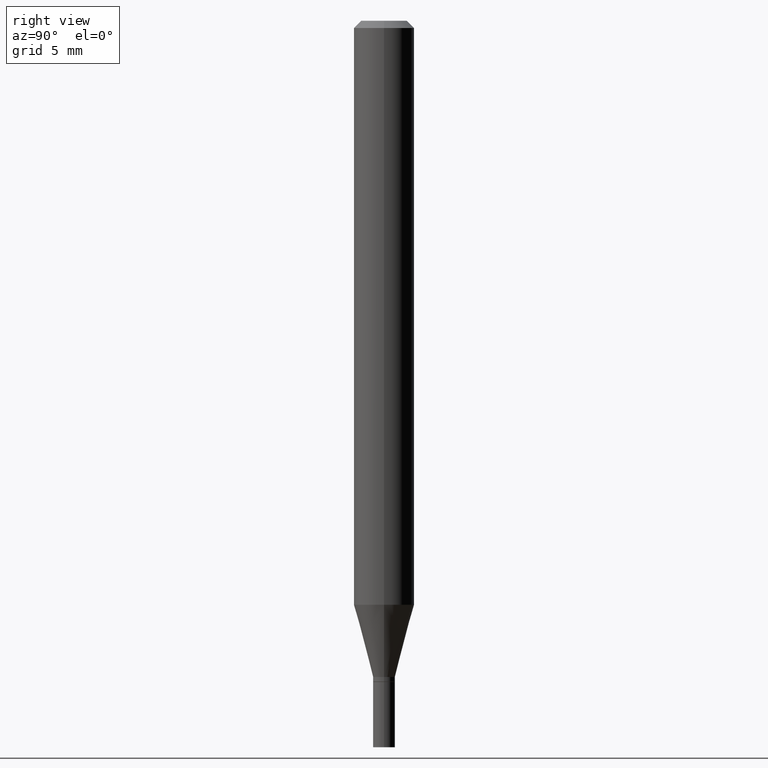
[diagram: clean part render]
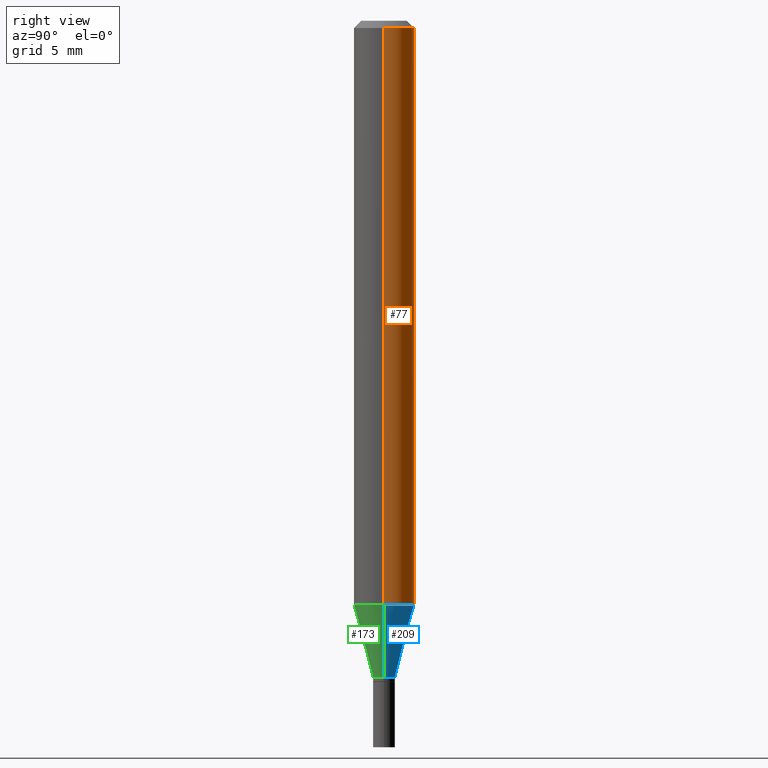
[diagram: same view with three faces highlighted in distinct colors, each labeled with its STEP entity id]
A machine part, right view with three faces highlighted in distinct colors.
Their STEP definitions:

[orange] entity #77 — the highlighted cylindrical surface (edge-blend (fillet) strip) has radius 1.5875 mm, axis along (-0, 0, 1).
#2 = LINE ( 'NONE', #140, #127 ) ;
#19 = CIRCLE ( 'NONE', #132, 0.06250000000000000000 ) ;
#32 = DIRECTION ( 'NONE',  ( -2.445468806185136597E-29, 3.491481338843145583E-15, 1.000000000000000000 ) ) ;
#34 = DIRECTION ( 'NONE',  ( 1.000000000000000000, -6.982962677686266711E-15, 0.000000000000000000 ) ) ;
#41 = CIRCLE ( 'NONE', #57, 0.06250000000000000000 ) ;
#49 = EDGE_CURVE ( 'NONE', #62, #54, #41, .T. ) ;
#54 = VERTEX_POINT ( 'NONE', #363 ) ;
#57 = AXIS2_PLACEMENT_3D ( 'NONE', #371, #403, #431 ) ;
#62 = VERTEX_POINT ( 'NONE', #394 ) ;
#74 = ORIENTED_EDGE ( 'NONE', *, *, #49, .T. ) ;
#77 = ADVANCED_FACE ( 'NONE', ( #152 ), #339, .T. ) ;
#89 = CARTESIAN_POINT ( 'NONE',  ( 0.000000000000000000, 0.000000000000000000, 0.000000000000000000 ) ) ;
#90 = EDGE_LOOP ( 'NONE', ( #74, #343, #234, #126 ) ) ;
#125 = VERTEX_POINT ( 'NONE', #219 ) ;
#126 = ORIENTED_EDGE ( 'NONE', *, *, #328, .F. ) ;
#127 = VECTOR ( 'NONE', #353, 39.37007874015748143 ) ;
#132 = AXIS2_PLACEMENT_3D ( 'NONE', #235, #32, #34 ) ;
#140 = CARTESIAN_POINT ( 'NONE',  ( 0.06250000000000000000, -4.364351673553916694E-16, 3.047610484872459871E-30 ) ) ;
#152 = FACE_OUTER_BOUND ( 'NONE', #90, .T. ) ;
#183 = DIRECTION ( 'NONE',  ( 1.000000000000000000, -6.982962677686266711E-15, 4.876176775795935793E-29 ) ) ;
#208 = DIRECTION ( 'NONE',  ( -2.445468806185136877E-29, 3.491481338843145188E-15, 1.000000000000000000 ) ) ;
#219 = CARTESIAN_POINT ( 'NONE',  ( 0.06250000000000000000, -4.888073874380388472E-16, -0.01499999999999999944 ) ) ;
#234 = ORIENTED_EDGE ( 'NONE', *, *, #244, .F. ) ;
#235 = CARTESIAN_POINT ( 'NONE',  ( 3.668203209277705088E-31, -5.237222008264718399E-17, -0.01499999999999999944 ) ) ;
#239 = CARTESIAN_POINT ( 'NONE',  ( -0.06250000000000000000, 4.440892098500626162E-16, -3.074334431409316114E-30 ) ) ;
#243 = EDGE_CURVE ( 'NONE', #54, #406, #420, .T. ) ;
#244 = EDGE_CURVE ( 'NONE', #125, #406, #19, .T. ) ;
#258 = DIRECTION ( 'NONE',  ( -2.445468806185136597E-29, 3.491481338843145583E-15, 1.000000000000000000 ) ) ;
#324 = CARTESIAN_POINT ( 'NONE',  ( -0.06250000000000000000, -1.686967792252667731E-15, -0.01499999999999999944 ) ) ;
#328 = EDGE_CURVE ( 'NONE', #62, #125, #2, .T. ) ;
#339 = CYLINDRICAL_SURFACE ( 'NONE', #421, 0.06250000000000000000 ) ;
#343 = ORIENTED_EDGE ( 'NONE', *, *, #243, .T. ) ;
#353 = DIRECTION ( 'NONE',  ( -2.445468806185136877E-29, 3.491481338843145188E-15, 1.000000000000000000 ) ) ;
#363 = CARTESIAN_POINT ( 'NONE',  ( -0.06250000000000001388, -3.765652574272750998E-15, -1.205717967697245152 ) ) ;
#371 = CARTESIAN_POINT ( 'NONE',  ( 2.948545679060551070E-29, -4.209741784122813615E-15, -1.205717967697245152 ) ) ;
#394 = CARTESIAN_POINT ( 'NONE',  ( 0.06250000000000001388, -4.646176951478205284E-15, -1.205717967697245152 ) ) ;
#395 = VECTOR ( 'NONE', #208, 39.37007874015748143 ) ;
#403 = DIRECTION ( 'NONE',  ( -2.445468806185136597E-29, 3.491481338843145583E-15, 1.000000000000000000 ) ) ;
#406 = VERTEX_POINT ( 'NONE', #324 ) ;
#420 = LINE ( 'NONE', #239, #395 ) ;
#421 = AXIS2_PLACEMENT_3D ( 'NONE', #89, #258, #183 ) ;
#431 = DIRECTION ( 'NONE',  ( 1.000000000000000000, -6.982962677686270655E-15, 0.000000000000000000 ) ) ;

[blue] entity #209 — the highlighted conical surface has half-angle 15 deg.
#41 = CIRCLE ( 'NONE', #57, 0.06250000000000000000 ) ;
#46 = DIRECTION ( 'NONE',  ( 1.000000000000000000, -6.982962677686249356E-15, 0.000000000000000000 ) ) ;
#49 = EDGE_CURVE ( 'NONE', #62, #54, #41, .T. ) ;
#54 = VERTEX_POINT ( 'NONE', #363 ) ;
#57 = AXIS2_PLACEMENT_3D ( 'NONE', #371, #403, #431 ) ;
#62 = VERTEX_POINT ( 'NONE', #394 ) ;
#63 = LINE ( 'NONE', #457, #280 ) ;
#78 = CARTESIAN_POINT ( 'NONE',  ( 0.02249999999999991937, -4.888073874380403263E-15, -1.355000000000000204 ) ) ;
#83 = CARTESIAN_POINT ( 'NONE',  ( 3.313610232380860851E-29, -4.730957214132463209E-15, -1.355000000000000204 ) ) ;
#110 = VECTOR ( 'NONE', #299, 39.37007874015747433 ) ;
#153 = ORIENTED_EDGE ( 'NONE', *, *, #459, .F. ) ;
#164 = ORIENTED_EDGE ( 'NONE', *, *, #49, .F. ) ;
#177 = EDGE_LOOP ( 'NONE', ( #397, #230, #164, #153 ) ) ;
#190 = FACE_OUTER_BOUND ( 'NONE', #177, .T. ) ;
#200 = DIRECTION ( 'NONE',  ( -0.2588190451025213501, 5.211531920934551042E-15, 0.9659258262890682012 ) ) ;
#209 = ADVANCED_FACE ( 'NONE', ( #190 ), #435, .T. ) ;
#212 = CIRCLE ( 'NONE', #356, 0.02249999999999991937 ) ;
#230 = ORIENTED_EDGE ( 'NONE', *, *, #262, .T. ) ;
#231 = AXIS2_PLACEMENT_3D ( 'NONE', #83, #365, #46 ) ;
#259 = CARTESIAN_POINT ( 'NONE',  ( 0.02249999999999991937, -4.888073874380403263E-15, -1.355000000000000204 ) ) ;
#262 = EDGE_CURVE ( 'NONE', #369, #54, #63, .T. ) ;
#280 = VECTOR ( 'NONE', #200, 39.37007874015747433 ) ;
#285 = DIRECTION ( 'NONE',  ( -2.445468806185136597E-29, 3.491481338843145583E-15, 1.000000000000000000 ) ) ;
#288 = CARTESIAN_POINT ( 'NONE',  ( -0.02249999999999991937, -4.168368836429595565E-15, -1.355000000000000204 ) ) ;
#296 = VERTEX_POINT ( 'NONE', #78 ) ;
#299 = DIRECTION ( 'NONE',  ( 0.2588190451025213501, 1.565188264969621968E-15, 0.9659258262890682012 ) ) ;
#330 = DIRECTION ( 'NONE',  ( 1.000000000000000000, -6.982962677686249356E-15, 0.000000000000000000 ) ) ;
#356 = AXIS2_PLACEMENT_3D ( 'NONE', #430, #285, #330 ) ;
#363 = CARTESIAN_POINT ( 'NONE',  ( -0.06250000000000001388, -3.765652574272750998E-15, -1.205717967697245152 ) ) ;
#365 = DIRECTION ( 'NONE',  ( -2.445468806185136597E-29, 3.491481338843145583E-15, 1.000000000000000000 ) ) ;
#369 = VERTEX_POINT ( 'NONE', #288 ) ;
#371 = CARTESIAN_POINT ( 'NONE',  ( 2.948545679060551070E-29, -4.209741784122813615E-15, -1.205717967697245152 ) ) ;
#394 = CARTESIAN_POINT ( 'NONE',  ( 0.06250000000000001388, -4.646176951478205284E-15, -1.205717967697245152 ) ) ;
#397 = ORIENTED_EDGE ( 'NONE', *, *, #424, .T. ) ;
#403 = DIRECTION ( 'NONE',  ( -2.445468806185136597E-29, 3.491481338843145583E-15, 1.000000000000000000 ) ) ;
#415 = LINE ( 'NONE', #259, #110 ) ;
#424 = EDGE_CURVE ( 'NONE', #296, #369, #212, .T. ) ;
#430 = CARTESIAN_POINT ( 'NONE',  ( 3.313610232380860851E-29, -4.730957214132463209E-15, -1.355000000000000204 ) ) ;
#431 = DIRECTION ( 'NONE',  ( 1.000000000000000000, -6.982962677686270655E-15, 0.000000000000000000 ) ) ;
#435 = CONICAL_SURFACE ( 'NONE', #231, 0.02249999999999991937, 0.2617993877991500740 ) ;
#457 = CARTESIAN_POINT ( 'NONE',  ( -0.02249999999999991937, -4.571085098586440920E-15, -1.355000000000000204 ) ) ;
#459 = EDGE_CURVE ( 'NONE', #296, #62, #415, .T. ) ;

[green] entity #173 — the highlighted conical surface has half-angle 15 deg.
#48 = FACE_OUTER_BOUND ( 'NONE', #223, .T. ) ;
#54 = VERTEX_POINT ( 'NONE', #363 ) ;
#59 = CIRCLE ( 'NONE', #390, 0.06250000000000000000 ) ;
#62 = VERTEX_POINT ( 'NONE', #394 ) ;
#63 = LINE ( 'NONE', #457, #280 ) ;
#78 = CARTESIAN_POINT ( 'NONE',  ( 0.02249999999999991937, -4.888073874380403263E-15, -1.355000000000000204 ) ) ;
#79 = AXIS2_PLACEMENT_3D ( 'NONE', #408, #294, #373 ) ;
#110 = VECTOR ( 'NONE', #299, 39.37007874015747433 ) ;
#115 = DIRECTION ( 'NONE',  ( 1.000000000000000000, -6.982962677686249356E-15, 0.000000000000000000 ) ) ;
#144 = DIRECTION ( 'NONE',  ( -2.445468806185136597E-29, 3.491481338843145583E-15, 1.000000000000000000 ) ) ;
#173 = ADVANCED_FACE ( 'NONE', ( #48 ), #279, .T. ) ;
#174 = CIRCLE ( 'NONE', #326, 0.02249999999999991937 ) ;
#185 = CARTESIAN_POINT ( 'NONE',  ( 3.313610232380860851E-29, -4.730957214132463209E-15, -1.355000000000000204 ) ) ;
#199 = ORIENTED_EDGE ( 'NONE', *, *, #262, .F. ) ;
#200 = DIRECTION ( 'NONE',  ( -0.2588190451025213501, 5.211531920934551042E-15, 0.9659258262890682012 ) ) ;
#210 = EDGE_CURVE ( 'NONE', #369, #296, #174, .T. ) ;
#223 = EDGE_LOOP ( 'NONE', ( #199, #336, #264, #465 ) ) ;
#259 = CARTESIAN_POINT ( 'NONE',  ( 0.02249999999999991937, -4.888073874380403263E-15, -1.355000000000000204 ) ) ;
#262 = EDGE_CURVE ( 'NONE', #369, #54, #63, .T. ) ;
#264 = ORIENTED_EDGE ( 'NONE', *, *, #459, .T. ) ;
#279 = CONICAL_SURFACE ( 'NONE', #79, 0.02249999999999991937, 0.2617993877991500740 ) ;
#280 = VECTOR ( 'NONE', #200, 39.37007874015747433 ) ;
#288 = CARTESIAN_POINT ( 'NONE',  ( -0.02249999999999991937, -4.168368836429595565E-15, -1.355000000000000204 ) ) ;
#294 = DIRECTION ( 'NONE',  ( -2.445468806185136597E-29, 3.491481338843145583E-15, 1.000000000000000000 ) ) ;
#296 = VERTEX_POINT ( 'NONE', #78 ) ;
#299 = DIRECTION ( 'NONE',  ( 0.2588190451025213501, 1.565188264969621968E-15, 0.9659258262890682012 ) ) ;
#326 = AXIS2_PLACEMENT_3D ( 'NONE', #185, #440, #115 ) ;
#336 = ORIENTED_EDGE ( 'NONE', *, *, #210, .T. ) ;
#342 = EDGE_CURVE ( 'NONE', #54, #62, #59, .T. ) ;
#357 = DIRECTION ( 'NONE',  ( 1.000000000000000000, -6.982962677686270655E-15, 0.000000000000000000 ) ) ;
#362 = CARTESIAN_POINT ( 'NONE',  ( 2.948545679060551070E-29, -4.209741784122813615E-15, -1.205717967697245152 ) ) ;
#363 = CARTESIAN_POINT ( 'NONE',  ( -0.06250000000000001388, -3.765652574272750998E-15, -1.205717967697245152 ) ) ;
#369 = VERTEX_POINT ( 'NONE', #288 ) ;
#373 = DIRECTION ( 'NONE',  ( 1.000000000000000000, -6.982962677686249356E-15, 0.000000000000000000 ) ) ;
#390 = AXIS2_PLACEMENT_3D ( 'NONE', #362, #144, #357 ) ;
#394 = CARTESIAN_POINT ( 'NONE',  ( 0.06250000000000001388, -4.646176951478205284E-15, -1.205717967697245152 ) ) ;
#408 = CARTESIAN_POINT ( 'NONE',  ( 3.313610232380860851E-29, -4.730957214132463209E-15, -1.355000000000000204 ) ) ;
#415 = LINE ( 'NONE', #259, #110 ) ;
#440 = DIRECTION ( 'NONE',  ( -2.445468806185136597E-29, 3.491481338843145583E-15, 1.000000000000000000 ) ) ;
#457 = CARTESIAN_POINT ( 'NONE',  ( -0.02249999999999991937, -4.571085098586440920E-15, -1.355000000000000204 ) ) ;
#459 = EDGE_CURVE ( 'NONE', #296, #62, #415, .T. ) ;
#465 = ORIENTED_EDGE ( 'NONE', *, *, #342, .F. ) ;